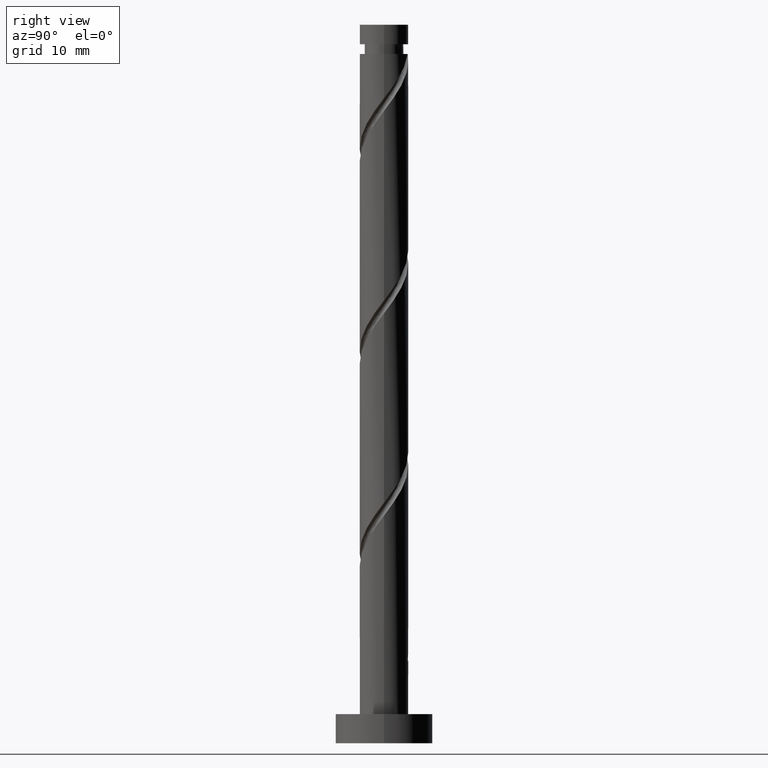
[diagram: clean part render]
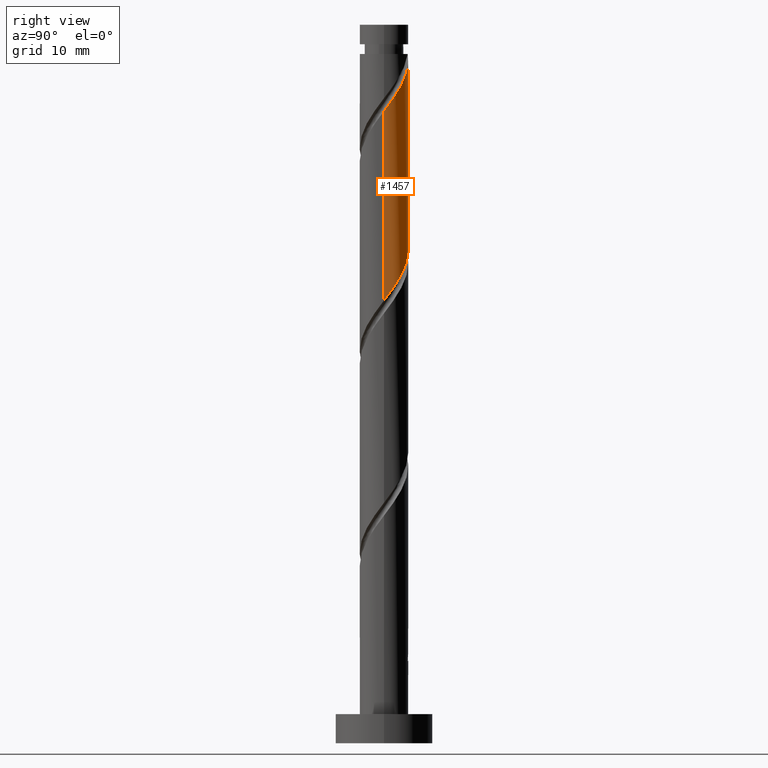
[diagram: same view with one face highlighted and labeled with its STEP entity id]
A machine part, right view. The second image highlights one B-rep face of the part: STEP entity #1457.
In plain terms, the highlighted cylindrical surface (edge-blend (fillet) strip) has radius 2.5 mm, axis along (-0, -0, -1).
Its self-contained STEP definition (entity closure, byte-faithful):
#24 = LINE ( 'NONE', #509, #386 ) ;
#83 = EDGE_CURVE ( 'NONE', #236, #663, #1422, .T. ) ;
#96 = FACE_OUTER_BOUND ( 'NONE', #909, .T. ) ;
#131 = ORIENTED_EDGE ( 'NONE', *, *, #83, .T. ) ;
#186 = CARTESIAN_POINT ( 'NONE',  ( -0.2839469933725888851, 2.483822478550886448, 51.19322289649934277 ) ) ;
#199 = CARTESIAN_POINT ( 'NONE',  ( 2.450000000000004174, 0.4974937185533096495, 65.77655622983267847 ) ) ;
#208 = CARTESIAN_POINT ( 'NONE',  ( 2.274511107092399786, 1.037592995212144320, 47.02655622983267847 ) ) ;
#219 = VECTOR ( 'NONE', #1187, 1000.000000000000000 ) ;
#224 = CARTESIAN_POINT ( 'NONE',  ( 2.500000000000000888, 0.1424343436160770970, 45.79753642717687967 ) ) ;
#236 = VERTEX_POINT ( 'NONE', #1489 ) ;
#253 = ORIENTED_EDGE ( 'NONE', *, *, #1220, .F. ) ;
#297 = CARTESIAN_POINT ( 'NONE',  ( 2.371204735821965226, 0.8855355973484240195, 66.29738956316600706 ) ) ;
#328 = CARTESIAN_POINT ( 'NONE',  ( 2.110172521261064027, 1.397840163920914813, 47.54738956316598575 ) ) ;
#341 = EDGE_CURVE ( 'NONE', #849, #875, #24, .T. ) ;
#353 = LINE ( 'NONE', #1419, #219 ) ;
#361 = CARTESIAN_POINT ( 'NONE',  ( 2.500000000000000444, -2.938648145508366101E-15, 45.60802533796960745 ) ) ;
#386 = VECTOR ( 'NONE', #1241, 1000.000000000000000 ) ;
#429 = ORIENTED_EDGE ( 'NONE', *, *, #705, .F. ) ;
#443 = CARTESIAN_POINT ( 'NONE',  ( -2.371204735821961673, 0.8855355973484234644, 54.83905622983267136 ) ) ;
#450 = CARTESIAN_POINT ( 'NONE',  ( 1.574936960780883632, 1.981504166768770947, 48.58905622983265715 ) ) ;
#469 = CARTESIAN_POINT ( 'NONE',  ( -2.500000000000000000, 1.319393044922123427E-15, 56.02469200463625754 ) ) ;
#472 = DIRECTION ( 'NONE',  ( -1.000000000000000000, 0.000000000000000000, 0.000000000000000000 ) ) ;
#473 = CARTESIAN_POINT ( 'NONE',  ( 2.483822478550886892, 0.2839469933725883299, 45.98488956316601417 ) ) ;
#487 = CARTESIAN_POINT ( 'NONE',  ( 0.000000000000000000, 0.000000000000000000, 70.98488956316600706 ) ) ;
#509 = CARTESIAN_POINT ( 'NONE',  ( 2.500000000000000000, 3.061616997868383141E-16, 74.00000000000000000 ) ) ;
#547 = CARTESIAN_POINT ( 'NONE',  ( 2.500000000000003109, 2.548827473144993192E-16, 65.11175378836240668 ) ) ;
#548 = CARTESIAN_POINT ( 'NONE',  ( 0.8855355973484239085, 2.371204735821961229, 49.63072289649932856 ) ) ;
#566 = CARTESIAN_POINT ( 'NONE',  ( -2.500000000000000000, 1.319393044922123427E-15, 56.02469200463625043 ) ) ;
#618 =( BOUNDED_CURVE ( )  B_SPLINE_CURVE ( 2, ( #547, #929, #199, #297, #1160, #777, #903, #914, #1503, #785, #658, #1274, #921 ),
 .UNSPECIFIED., .F., .F. ) 
 B_SPLINE_CURVE_WITH_KNOTS ( ( 3, 2, 2, 2, 2, 2, 3 ),
 ( 0.6795322023138552492, 0.6875000000000000000, 0.6999999999999999556, 0.7124999999999999112, 0.7249999999999998668, 0.7374999999999999334, 0.7499999999999998890 ),
 .UNSPECIFIED. ) 
 CURVE ( )  GEOMETRIC_REPRESENTATION_ITEM ( )  RATIONAL_B_SPLINE_CURVE ( ( 0.9039174447099327381, 0.9019565955404621471, 0.9090909090909105039, 0.8978984914501265679, 0.9090909090909105039, 0.8978984914501265679, 0.9090909090909105039, 0.8978984914501265679, 0.9090909090909105039, 0.8978984914501265679, 0.9090909090909105039, 0.8978984914501266790, 0.9090909090909103929 ) ) 
 REPRESENTATION_ITEM ( '' )  );
#645 = ORIENTED_EDGE ( 'NONE', *, *, #341, .T. ) ;
#658 = CARTESIAN_POINT ( 'NONE',  ( 0.2839469933725902728, 2.483822478550889112, 69.94322289649934987 ) ) ;
#661 = EDGE_CURVE ( 'NONE', #867, #875, #1436, .T. ) ;
#663 = VERTEX_POINT ( 'NONE', #1323 ) ;
#668 = CARTESIAN_POINT ( 'NONE',  ( 0.4974937185533103712, 2.449999999999999734, 50.15155622983268557 ) ) ;
#705 = EDGE_CURVE ( 'NONE', #236, #867, #353, .T. ) ;
#713 = CARTESIAN_POINT ( 'NONE',  ( 2.438849692923733326, 0.6773458265033731607, 46.50572289649934987 ) ) ;
#777 = CARTESIAN_POINT ( 'NONE',  ( 1.981504166768774500, 1.574936960780884743, 67.33905622983267847 ) ) ;
#785 = CARTESIAN_POINT ( 'NONE',  ( 0.6773458265033753811, 2.438849692923736878, 69.42238956316602128 ) ) ;
#818 = CARTESIAN_POINT ( 'NONE',  ( 2.500000000000000444, -2.938648145508366101E-15, 45.60802533796960034 ) ) ;
#831 = AXIS2_PLACEMENT_3D ( 'NONE', #1428, #941, #472 ) ;
#836 = DIRECTION ( 'NONE',  ( -1.000000000000000000, 0.000000000000000000, 0.000000000000000000 ) ) ;
#849 = VERTEX_POINT ( 'NONE', #1067 ) ;
#867 = VERTEX_POINT ( 'NONE', #469 ) ;
#875 = VERTEX_POINT ( 'NONE', #818 ) ;
#899 = ORIENTED_EDGE ( 'NONE', *, *, #661, .F. ) ;
#903 = CARTESIAN_POINT ( 'NONE',  ( 1.689672165344846988, 1.842554741020975939, 67.85988956316600706 ) ) ;
#909 = EDGE_LOOP ( 'NONE', ( #253, #645, #899, #429, #131 ) ) ;
#914 = CARTESIAN_POINT ( 'NONE',  ( 1.397840163920918588, 2.110172521261066692, 68.38072289649934987 ) ) ;
#921 = CARTESIAN_POINT ( 'NONE',  ( -0.4974937185533092054, 2.450000000000001066, 70.98488956316603549 ) ) ;
#922 = CARTESIAN_POINT ( 'NONE',  ( -1.981504166768771391, 1.574936960780883410, 53.79738956316599996 ) ) ;
#929 = CARTESIAN_POINT ( 'NONE',  ( 2.500000000000003109, 0.2512594538148035239, 65.44605836377024843 ) ) ;
#930 = CARTESIAN_POINT ( 'NONE',  ( -1.037592995212144764, 2.274511107092399342, 52.23488956316600706 ) ) ;
#941 = DIRECTION ( 'NONE',  ( -0.000000000000000000, -0.000000000000000000, -1.000000000000000000 ) ) ;
#1049 = CARTESIAN_POINT ( 'NONE',  ( -0.6773458265033731607, 2.438849692923732881, 51.71405622983267847 ) ) ;
#1067 = CARTESIAN_POINT ( 'NONE',  ( 2.500000000000003109, 2.548827473144993192E-16, 65.11175378836240668 ) ) ;
#1154 = CARTESIAN_POINT ( 'NONE',  ( -2.499999999999999556, 0.2512594538148035239, 55.69038742922842999 ) ) ;
#1160 = CARTESIAN_POINT ( 'NONE',  ( 2.176354451295370307, 1.230236279064654381, 66.81822289649934987 ) ) ;
#1171 = DIRECTION ( 'NONE',  ( -0.000000000000000000, -0.000000000000000000, -1.000000000000000000 ) ) ;
#1185 = CYLINDRICAL_SURFACE ( 'NONE', #831, 2.500000000000000000 ) ;
#1187 = DIRECTION ( 'NONE',  ( -0.000000000000000000, -0.000000000000000000, -1.000000000000000000 ) ) ;
#1220 = EDGE_CURVE ( 'NONE', #849, #663, #618, .T. ) ;
#1241 = DIRECTION ( 'NONE',  ( -0.000000000000000000, -0.000000000000000000, -1.000000000000000000 ) ) ;
#1267 = CARTESIAN_POINT ( 'NONE',  ( -2.449999999999999734, 0.4974937185533098716, 55.35988956316601417 ) ) ;
#1274 = CARTESIAN_POINT ( 'NONE',  ( -0.1094518397581912966, 2.528795264178040458, 70.46405622983269268 ) ) ;
#1289 = CARTESIAN_POINT ( 'NONE',  ( -2.176354451295366754, 1.230236279064653937, 54.31822289649934987 ) ) ;
#1323 = CARTESIAN_POINT ( 'NONE',  ( -0.4974937185533092054, 2.450000000000000622, 70.98488956316603549 ) ) ;
#1343 = AXIS2_PLACEMENT_3D ( 'NONE', #487, #1171, #836 ) ;
#1386 = CARTESIAN_POINT ( 'NONE',  ( -1.689672165344843879, 1.842554741020974163, 53.27655622983267136 ) ) ;
#1404 = CARTESIAN_POINT ( 'NONE',  ( -1.397840163920915035, 2.110172521261063583, 52.75572289649933566 ) ) ;
#1411 = CARTESIAN_POINT ( 'NONE',  ( 1.842554741020974607, 1.689672165344843435, 48.06822289649934277 ) ) ;
#1419 = CARTESIAN_POINT ( 'NONE',  ( -2.500000000000000000, 0.000000000000000000, 74.00000000000000000 ) ) ;
#1422 = CIRCLE ( 'NONE', #1343, 2.500000000000003109 ) ;
#1428 = CARTESIAN_POINT ( 'NONE',  ( 0.000000000000000000, 0.000000000000000000, 74.00000000000000000 ) ) ;
#1436 =( BOUNDED_CURVE ( )  B_SPLINE_CURVE ( 2, ( #566, #1154, #1267, #443, #1289, #922, #1386, #1404, #930, #1049, #186, #1536, #668, #548, #1520, #450, #1411, #328, #208, #713, #473, #224, #361 ),
 .UNSPECIFIED., .F., .T. ) 
 B_SPLINE_CURVE_WITH_KNOTS ( ( 3, 2, 2, 2, 2, 2, 2, 2, 2, 2, 2, 3 ),
 ( 0.4295322023138551937, 0.4375000000000000000, 0.4500000000000000111, 0.4625000000000000222, 0.4749999999999999778, 0.4874999999999999889, 0.5000000000000000000, 0.5124999999999999556, 0.5250000000000000222, 0.5374999999999999778, 0.5500000000000000444, 0.5545322023138553602 ),
 .UNSPECIFIED. ) 
 CURVE ( )  GEOMETRIC_REPRESENTATION_ITEM ( )  RATIONAL_B_SPLINE_CURVE ( ( 0.9039174447099264098, 0.9019565955404557078, 0.9090909090909039536, 0.8978984914501202397, 0.9090909090909039536, 0.8978984914501202397, 0.9090909090909039536, 0.8978984914501202397, 0.9090909090909039536, 0.8978984914501202397, 0.9090909090909039536, 0.8978984914501202397, 0.9090909090909039536, 0.8978984914501202397, 0.9090909090909039536, 0.8978984914501202397, 0.9090909090909039536, 0.8978984914501202397, 0.9090909090909039536, 0.8978984914501202397, 0.9090909090909039536, 0.9050328050005682634, 0.9039174447099260767 ) ) 
 REPRESENTATION_ITEM ( '' )  );
#1457 = ADVANCED_FACE ( 'NONE', ( #96 ), #1185, .T. ) ;
#1489 = CARTESIAN_POINT ( 'NONE',  ( -2.500000000000002665, 0.000000000000000000, 70.98488956316600706 ) ) ;
#1503 = CARTESIAN_POINT ( 'NONE',  ( 1.037592995212146985, 2.274511107092402451, 68.90155622983265005 ) ) ;
#1520 = CARTESIAN_POINT ( 'NONE',  ( 1.230236279064654159, 2.176354451295366754, 49.10988956316600706 ) ) ;
#1536 = CARTESIAN_POINT ( 'NONE',  ( 0.1094518397581957930, 2.528795264178037794, 50.67238956316601417 ) ) ;